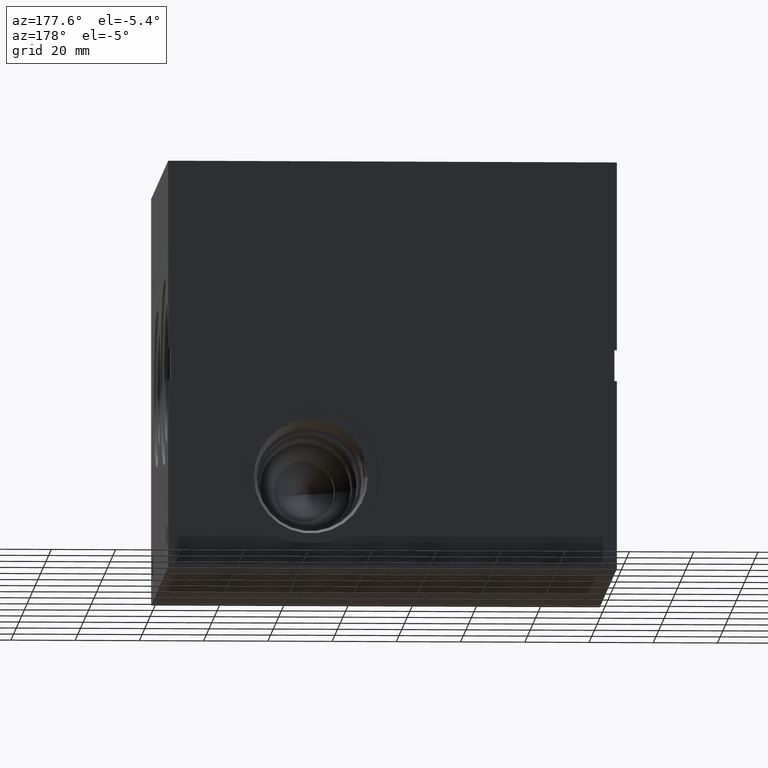
[diagram: clean part render]
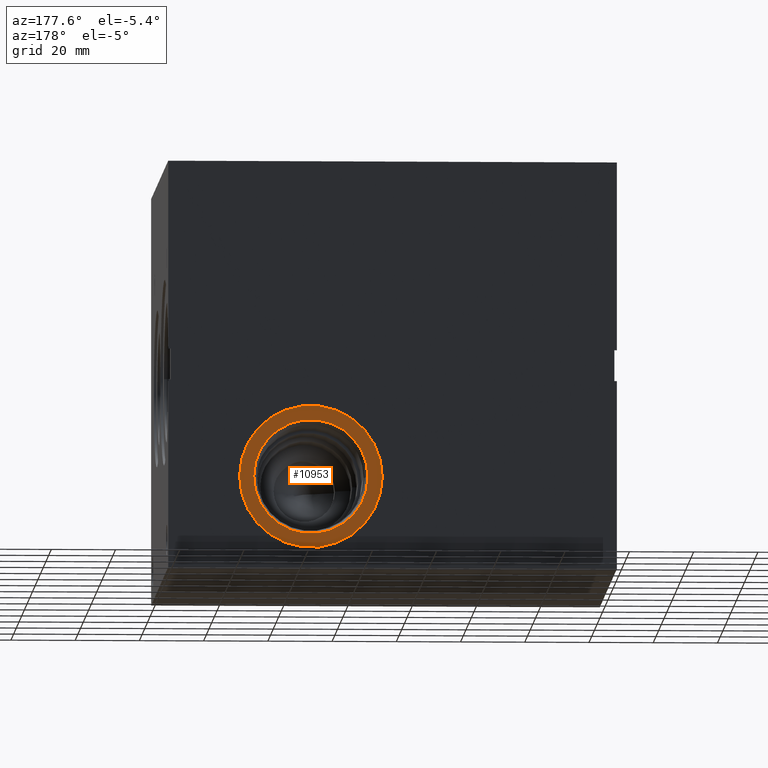
[diagram: same view with one face highlighted and labeled with its STEP entity id]
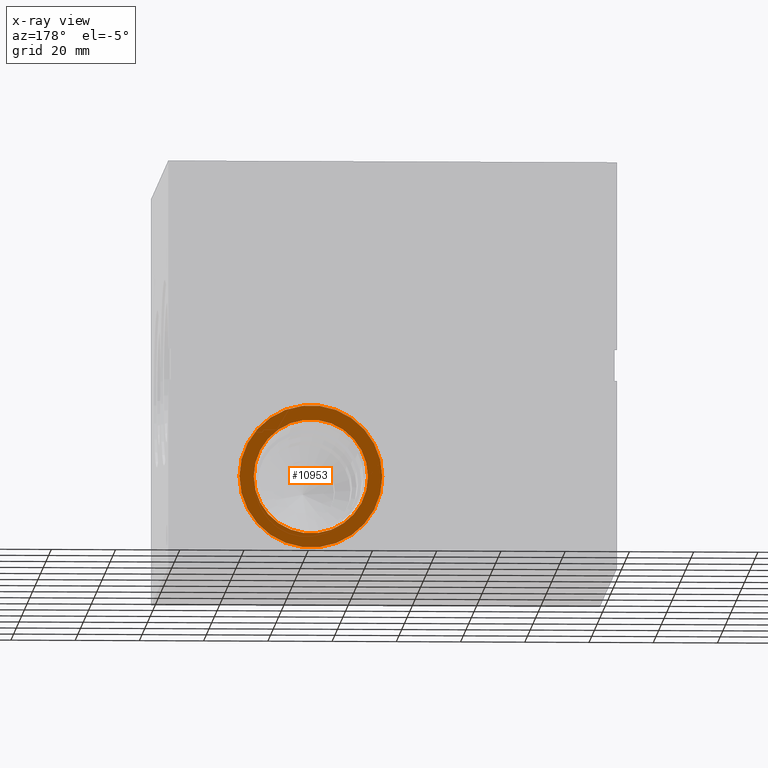
[diagram: x-ray of the same camera — body ghosted, the highlighted face saturated]
A machine part, auxiliary view. The second image highlights one B-rep face of the part: STEP entity #10953.
The next image is the same camera in x-ray: the body ghosted, the highlighted face saturated — about 0% of this face is hidden behind the body in this view.
In plain terms, the highlighted planar face has unit normal (0, -1, 0).
Its self-contained STEP definition (entity closure, byte-faithful):
#136=CIRCLE('',#11408,22.225);
#137=CIRCLE('',#11409,22.225);
#138=CIRCLE('',#11411,17.79);
#139=CIRCLE('',#11412,17.79);
#377=FACE_BOUND('',#1910,.T.);
#1293=FACE_OUTER_BOUND('',#1909,.T.);
#1909=EDGE_LOOP('',(#9115,#9116));
#1910=EDGE_LOOP('',(#9117,#9118));
#4948=VERTEX_POINT('',#18454);
#4949=VERTEX_POINT('',#18456);
#4950=VERTEX_POINT('',#18460);
#4951=VERTEX_POINT('',#18461);
#6397=EDGE_CURVE('',#4948,#4949,#136,.T.);
#6398=EDGE_CURVE('',#4949,#4948,#137,.T.);
#6399=EDGE_CURVE('',#4950,#4951,#138,.T.);
#6400=EDGE_CURVE('',#4951,#4950,#139,.T.);
#9115=ORIENTED_EDGE('',*,*,#6398,.F.);
#9116=ORIENTED_EDGE('',*,*,#6397,.F.);
#9117=ORIENTED_EDGE('',*,*,#6399,.T.);
#9118=ORIENTED_EDGE('',*,*,#6400,.T.);
#10057=PLANE('',#11410);
#10953=ADVANCED_FACE('',(#1293,#377),#10057,.F.);
#11408=AXIS2_PLACEMENT_3D('',#18457,#13274,#13275);
#11409=AXIS2_PLACEMENT_3D('',#18458,#13276,#13277);
#11410=AXIS2_PLACEMENT_3D('',#18459,#13278,#13279);
#11411=AXIS2_PLACEMENT_3D('',#18462,#13280,#13281);
#11412=AXIS2_PLACEMENT_3D('',#18463,#13282,#13283);
#13274=DIRECTION('center_axis',(0.,-1.,0.));
#13275=DIRECTION('ref_axis',(1.,0.,0.));
#13276=DIRECTION('center_axis',(0.,-1.,0.));
#13277=DIRECTION('ref_axis',(1.,0.,0.));
#13278=DIRECTION('center_axis',(0.,-1.,0.));
#13279=DIRECTION('ref_axis',(0.,0.,-1.));
#13280=DIRECTION('center_axis',(0.,-1.,0.));
#13281=DIRECTION('ref_axis',(1.,0.,0.));
#13282=DIRECTION('center_axis',(0.,-1.,0.));
#13283=DIRECTION('ref_axis',(1.,0.,0.));
#18454=CARTESIAN_POINT('',(73.025,126.2126,28.575));
#18456=CARTESIAN_POINT('',(117.475,126.2126,28.575));
#18457=CARTESIAN_POINT('Origin',(95.25,126.2126,28.575));
#18458=CARTESIAN_POINT('Origin',(95.25,126.2126,28.575));
#18459=CARTESIAN_POINT('Origin',(113.04,126.2126,28.575));
#18460=CARTESIAN_POINT('',(113.04,126.2126,28.575));
#18461=CARTESIAN_POINT('',(77.46,126.2126,28.575));
#18462=CARTESIAN_POINT('Origin',(95.25,126.2126,28.575));
#18463=CARTESIAN_POINT('Origin',(95.25,126.2126,28.575));